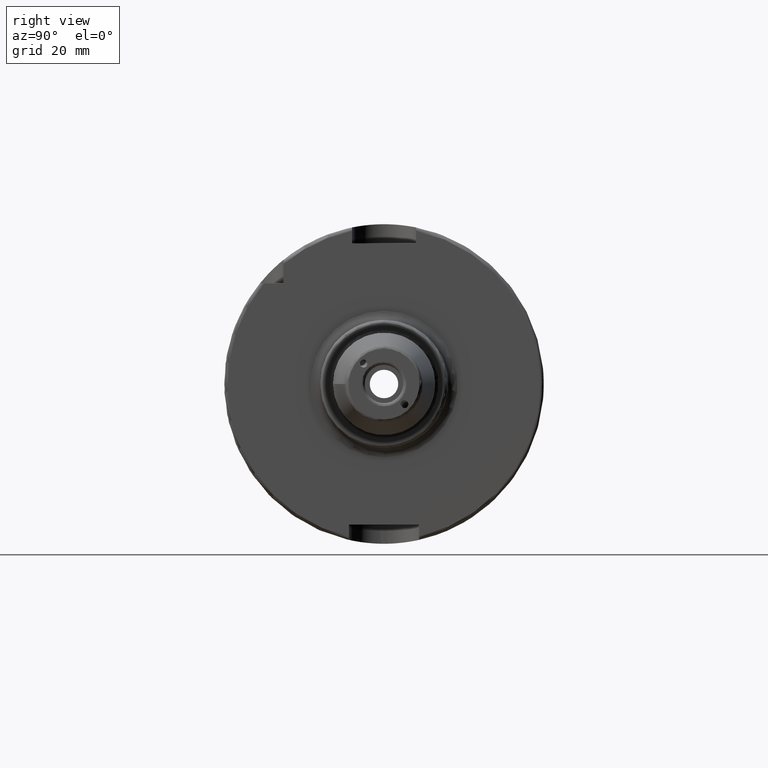
[diagram: clean part render]
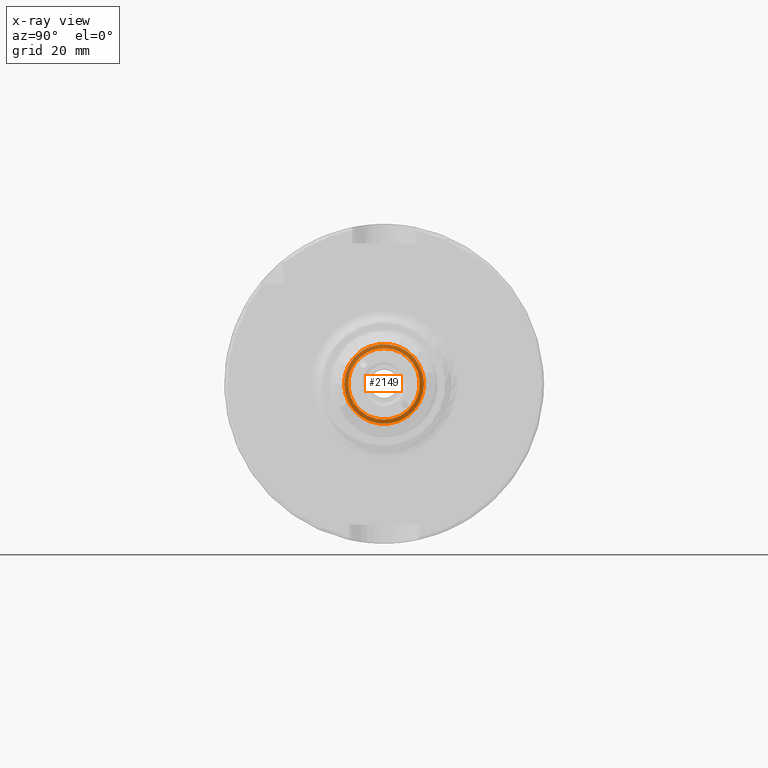
[diagram: x-ray — body ghosted, one internal face saturated and labeled with its STEP entity id]
A machine part, right view, then the same camera in x-ray: the body is ghosted and one INTERNAL B-rep face — a face not visible from any outside direction — is saturated and labeled: STEP entity #2149.
In plain terms, the highlighted planar face has unit normal (-1, 0, 0).
Its self-contained STEP definition (entity closure, byte-faithful):
#96=FACE_BOUND('',#455,.T.);
#133=PLANE('',#2424);
#319=FACE_OUTER_BOUND('',#454,.T.);
#454=EDGE_LOOP('',(#1945));
#455=EDGE_LOOP('',(#1946));
#806=CIRCLE('',#2415,11.188101);
#811=CIRCLE('',#2423,12.5);
#1029=VERTEX_POINT('',#4589);
#1033=VERTEX_POINT('',#4602);
#1339=EDGE_CURVE('',#1029,#1029,#806,.T.);
#1345=EDGE_CURVE('',#1033,#1033,#811,.T.);
#1945=ORIENTED_EDGE('',*,*,#1345,.F.);
#1946=ORIENTED_EDGE('',*,*,#1339,.T.);
#2149=ADVANCED_FACE('',(#319,#96),#133,.F.);
#2415=AXIS2_PLACEMENT_3D('',#4591,#3015,#3016);
#2423=AXIS2_PLACEMENT_3D('',#4604,#3032,#3033);
#2424=AXIS2_PLACEMENT_3D('',#4605,#3034,#3035);
#3015=DIRECTION('center_axis',(-1.,0.,0.));
#3016=DIRECTION('ref_axis',(0.,0.,1.));
#3032=DIRECTION('center_axis',(-1.,0.,0.));
#3033=DIRECTION('ref_axis',(0.,0.,1.));
#3034=DIRECTION('center_axis',(-1.,0.,0.));
#3035=DIRECTION('ref_axis',(0.,0.,1.));
#4589=CARTESIAN_POINT('',(22.5,-1.37014720781873E-15,-11.188101));
#4591=CARTESIAN_POINT('Origin',(22.5,0.,0.));
#4602=CARTESIAN_POINT('',(22.5,-12.5,1.53080849893419E-15));
#4604=CARTESIAN_POINT('Origin',(22.5,0.,0.));
#4605=CARTESIAN_POINT('Origin',(22.5,10.,0.));